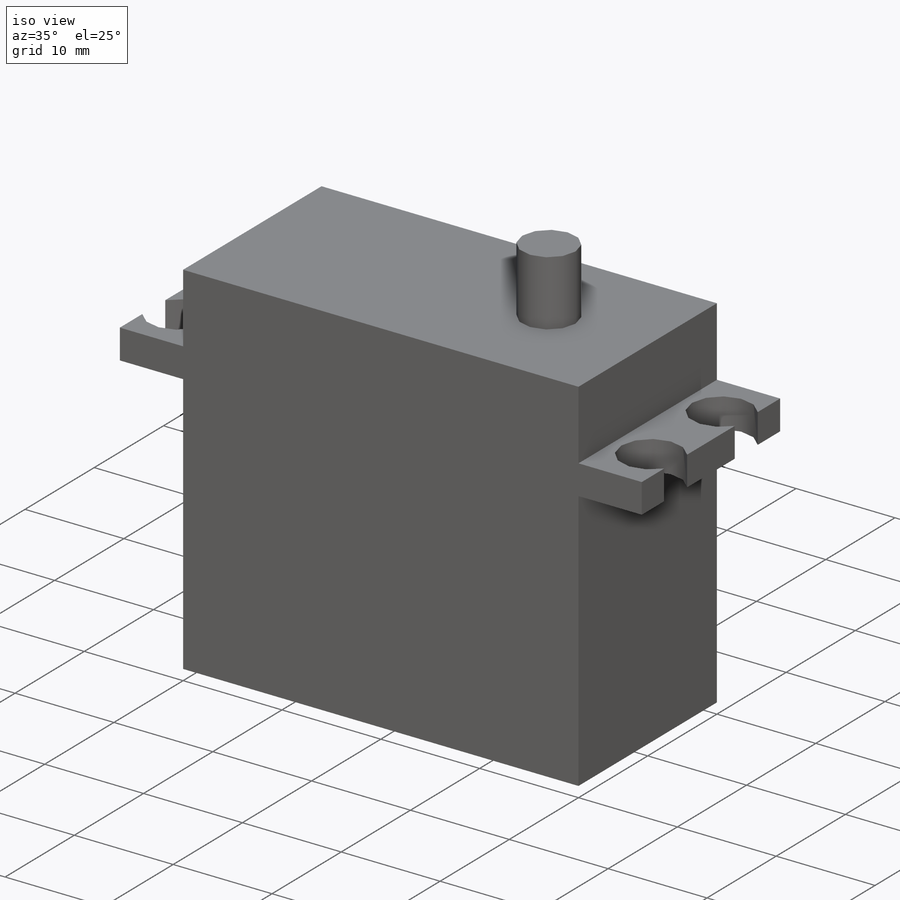
[diagram: iso view]
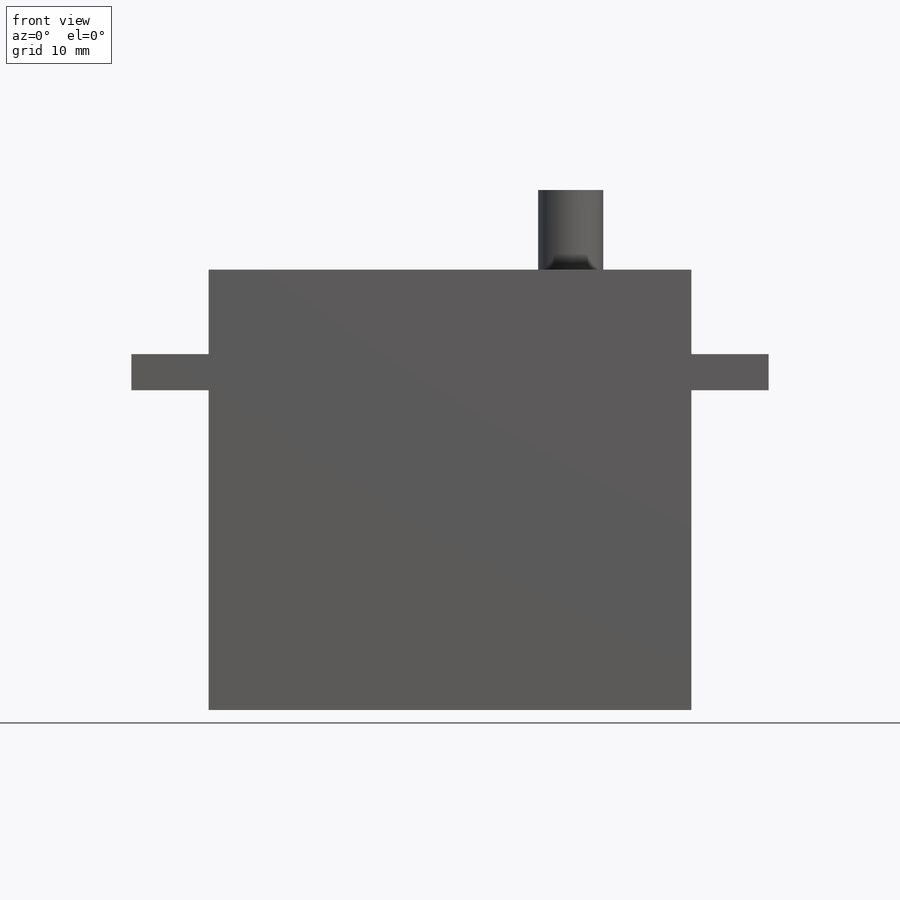
[diagram: front view]
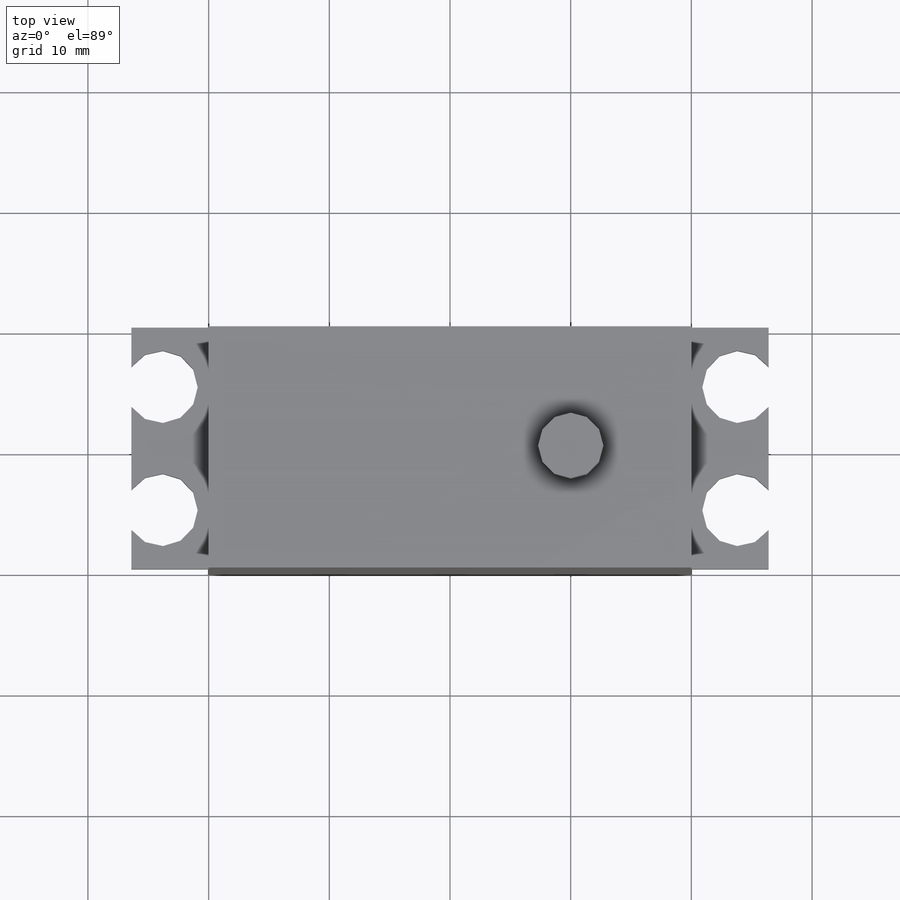
[diagram: top view]
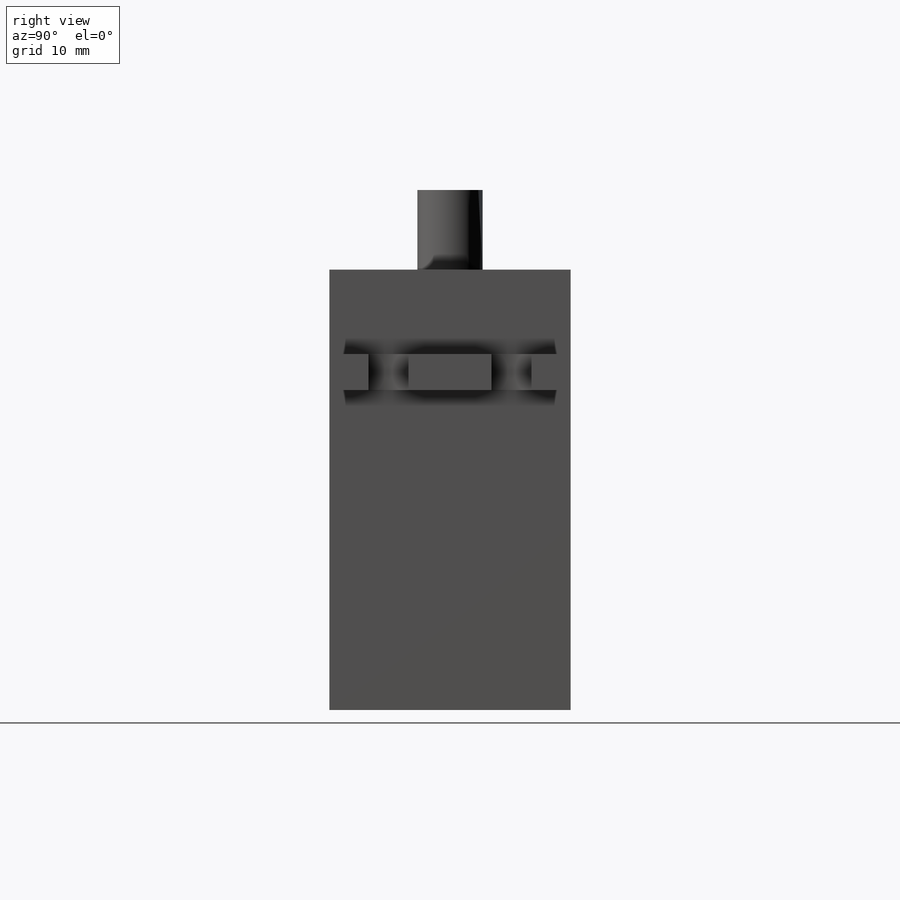
[diagram: right view]
SOLIDWORKS PART (.sldprt)
format: sldprt  version: not decoded by parser v0  size: 220,160 bytes
history: native  units: mm
features: sketch x5, plane x3, extrude x3, material x1, cut_extrude x1 (+9 scaffold rows collapsed)
feature tree (22):
  scaffold x9  (default folders/planes/origin — collapsed)
  material  "材質 <未指定>"
  plane  "前基準面"
  plane  "上基準面"
  plane  "右基準面"
  sketch  "草圖1"  dims[D1=40.0mm D2=36.5mm D3=52.8mm D4=26.4mm D5=26.5mm D6=26.5mm D7=3.0mm D8=3.0mm]
  extrude  "填料-伸長1"  Depth=20mm
  sketch  "草圖2"  dims[c1.D1=~2.105771mm c1.D2=~2.464619mm c1.D3=~2.464619mm c1.D4=~2.464619mm c1.D5=6.0mm c1.D6=6.0mm c2.D1=23.9mm c2.D2=23.9mm c2.D3=10.2mm c2.D4=5.1mm]
  cut_extrude  "除料-伸長1"  [1 undecoded]
  sketch  "草圖3"  dims[c1.D1=~6.409864mm c1.D2=5.4mm c2.D1=10.0mm]
  extrude  "填料-伸長2"  Depth=6.6mm
  sketch  "草圖4"  dims[D1=5.2mm]
  extrude  "填料-伸長3"  Depth=2.5mm
  sketch  "草圖5"
decode coverage: 7 of 9 modeling features carry decoded parameters
note: ~ marks probable driven/reference dimensions
note: 1 parameter value undecoded
note: suppression state not decoded; provenance and decode notes live in map.json
